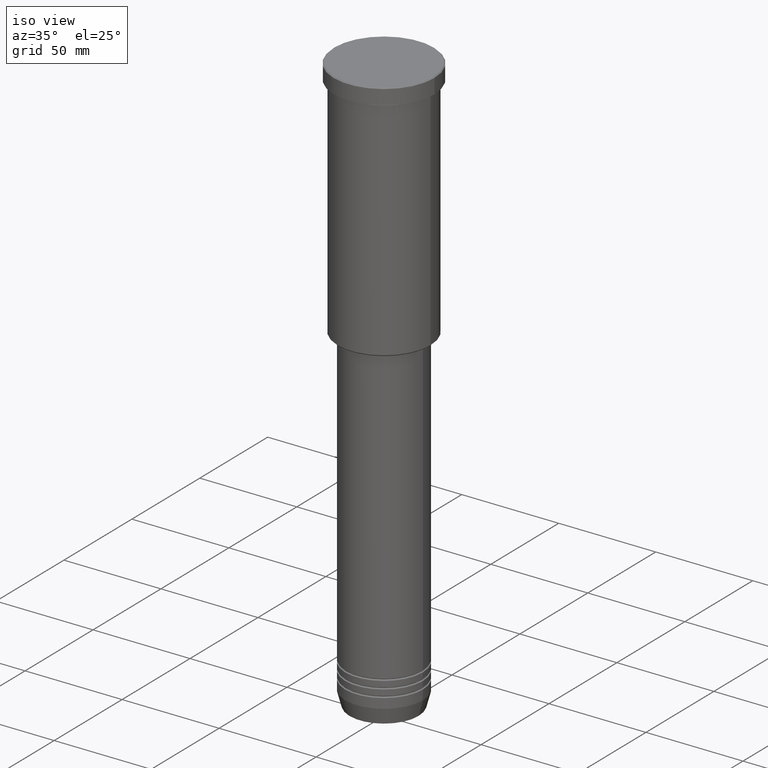
[diagram: clean part render]
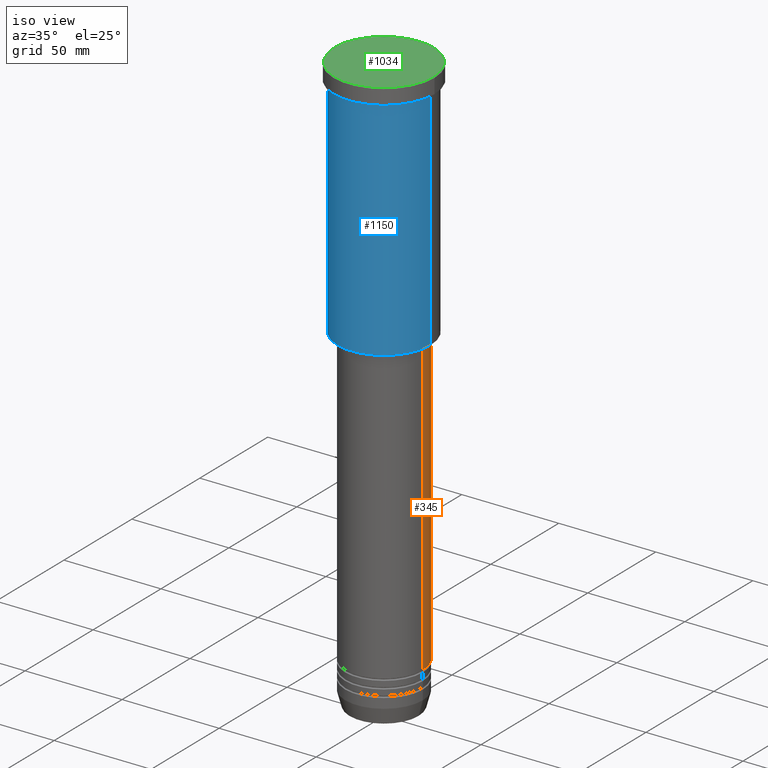
[diagram: same view with three faces highlighted in distinct colors, each labeled with its STEP entity id]
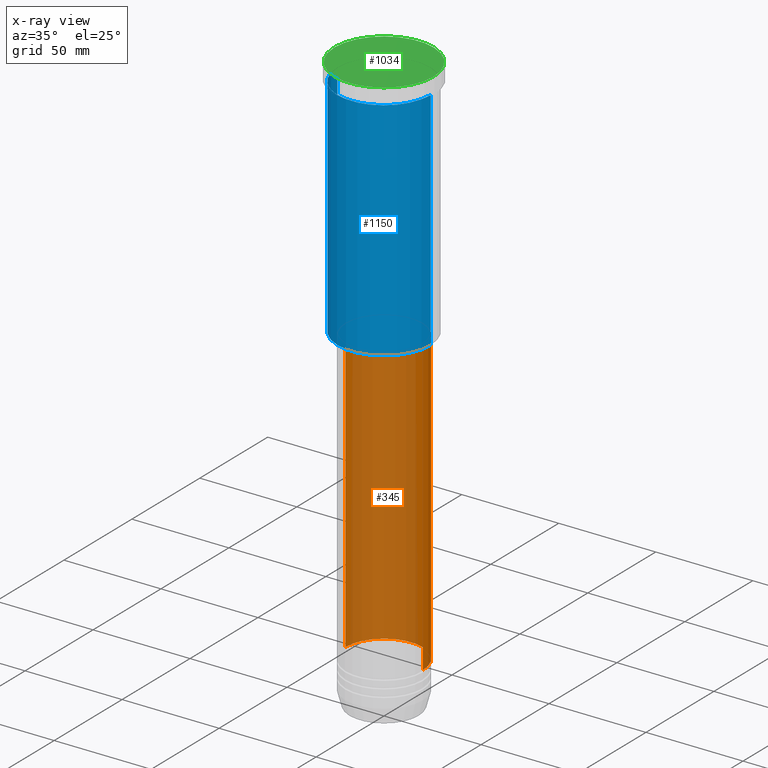
[diagram: x-ray of the same camera — body ghosted, the three highlighted faces saturated]
A machine part, iso view with three faces highlighted in distinct colors.
The next image is the same camera in x-ray (body ghosted, the three faces saturated) — at least one of them is partly hidden behind the body in this view.
Their STEP definitions:

[orange] entity #345 — the highlighted cylindrical surface (partial cylindrical patch) has radius 20 mm, axis along (-0, -0, 1).
#22 = CIRCLE ( 'NONE', #697, 20.00000000000000355 ) ;
#38 = DIRECTION ( 'NONE',  ( -0.000000000000000000, -0.000000000000000000, 1.000000000000000000 ) ) ;
#88 = DIRECTION ( 'NONE',  ( -0.000000000000000000, -0.000000000000000000, 1.000000000000000000 ) ) ;
#111 = EDGE_CURVE ( 'NONE', #239, #167, #267, .T. ) ;
#121 = CARTESIAN_POINT ( 'NONE',  ( 20.00000000000000355, 0.000000000000000000, -277.9999999999999432 ) ) ;
#145 = CARTESIAN_POINT ( 'NONE',  ( -20.00000000000000355, 2.449293598294706907E-15, -277.9999999999999432 ) ) ;
#156 = VECTOR ( 'NONE', #38, 1000.000000000000000 ) ;
#164 = ORIENTED_EDGE ( 'NONE', *, *, #616, .T. ) ;
#167 = VERTEX_POINT ( 'NONE', #751 ) ;
#186 = CARTESIAN_POINT ( 'NONE',  ( -20.00000000000000355, 2.449293598294706907E-15, -127.0000000000000000 ) ) ;
#187 = LINE ( 'NONE', #839, #156 ) ;
#239 = VERTEX_POINT ( 'NONE', #121 ) ;
#267 = LINE ( 'NONE', #1085, #620 ) ;
#327 = CYLINDRICAL_SURFACE ( 'NONE', #925, 20.00000000000000355 ) ;
#345 = ADVANCED_FACE ( 'NONE', ( #967 ), #327, .T. ) ;
#365 = VERTEX_POINT ( 'NONE', #145 ) ;
#374 = AXIS2_PLACEMENT_3D ( 'NONE', #553, #740, #468 ) ;
#417 = EDGE_CURVE ( 'NONE', #167, #783, #22, .T. ) ;
#468 = DIRECTION ( 'NONE',  ( 1.000000000000000000, 0.000000000000000000, 0.000000000000000000 ) ) ;
#553 = CARTESIAN_POINT ( 'NONE',  ( 0.000000000000000000, 0.000000000000000000, -277.9999999999999432 ) ) ;
#616 = EDGE_CURVE ( 'NONE', #239, #365, #885, .T. ) ;
#620 = VECTOR ( 'NONE', #88, 1000.000000000000000 ) ;
#624 = EDGE_CURVE ( 'NONE', #365, #783, #187, .T. ) ;
#651 = ORIENTED_EDGE ( 'NONE', *, *, #624, .T. ) ;
#697 = AXIS2_PLACEMENT_3D ( 'NONE', #704, #708, #1074 ) ;
#704 = CARTESIAN_POINT ( 'NONE',  ( 0.000000000000000000, 0.000000000000000000, -127.0000000000000000 ) ) ;
#708 = DIRECTION ( 'NONE',  ( -0.000000000000000000, -0.000000000000000000, 1.000000000000000000 ) ) ;
#740 = DIRECTION ( 'NONE',  ( -0.000000000000000000, -0.000000000000000000, 1.000000000000000000 ) ) ;
#751 = CARTESIAN_POINT ( 'NONE',  ( 20.00000000000000355, 0.000000000000000000, -127.0000000000000000 ) ) ;
#752 = EDGE_LOOP ( 'NONE', ( #164, #651, #869, #1139 ) ) ;
#775 = CARTESIAN_POINT ( 'NONE',  ( 0.000000000000000000, 0.000000000000000000, 0.000000000000000000 ) ) ;
#783 = VERTEX_POINT ( 'NONE', #186 ) ;
#786 = DIRECTION ( 'NONE',  ( 1.000000000000000000, 0.000000000000000000, 0.000000000000000000 ) ) ;
#839 = CARTESIAN_POINT ( 'NONE',  ( -20.00000000000000355, 2.449293598294706907E-15, 0.000000000000000000 ) ) ;
#869 = ORIENTED_EDGE ( 'NONE', *, *, #417, .F. ) ;
#885 = CIRCLE ( 'NONE', #374, 20.00000000000000355 ) ;
#925 = AXIS2_PLACEMENT_3D ( 'NONE', #775, #1036, #786 ) ;
#967 = FACE_OUTER_BOUND ( 'NONE', #752, .T. ) ;
#1036 = DIRECTION ( 'NONE',  ( -0.000000000000000000, -0.000000000000000000, 1.000000000000000000 ) ) ;
#1074 = DIRECTION ( 'NONE',  ( 1.000000000000000000, 0.000000000000000000, 0.000000000000000000 ) ) ;
#1085 = CARTESIAN_POINT ( 'NONE',  ( 20.00000000000000355, 0.000000000000000000, 0.000000000000000000 ) ) ;
#1139 = ORIENTED_EDGE ( 'NONE', *, *, #111, .F. ) ;

[blue] entity #1150 — the highlighted cylindrical surface (partial cylindrical patch) has radius 24 mm, axis along (-0, -0, 1).
#29 = DIRECTION ( 'NONE',  ( -1.000000000000000000, 0.000000000000000000, 0.000000000000000000 ) ) ;
#41 = VERTEX_POINT ( 'NONE', #336 ) ;
#47 = VERTEX_POINT ( 'NONE', #700 ) ;
#82 = ORIENTED_EDGE ( 'NONE', *, *, #1086, .F. ) ;
#112 = DIRECTION ( 'NONE',  ( -0.000000000000000000, -0.000000000000000000, 1.000000000000000000 ) ) ;
#124 = CIRCLE ( 'NONE', #278, 24.00000000000000000 ) ;
#125 = VECTOR ( 'NONE', #112, 1000.000000000000000 ) ;
#126 = DIRECTION ( 'NONE',  ( -0.000000000000000000, -0.000000000000000000, 1.000000000000000000 ) ) ;
#169 = ORIENTED_EDGE ( 'NONE', *, *, #889, .F. ) ;
#214 = CARTESIAN_POINT ( 'NONE',  ( -24.00000000000000000, 2.939152317953647894E-15, 0.000000000000000000 ) ) ;
#246 = DIRECTION ( 'NONE',  ( -0.000000000000000000, -0.000000000000000000, 1.000000000000000000 ) ) ;
#258 = CIRCLE ( 'NONE', #392, 24.00000000000000000 ) ;
#269 = CARTESIAN_POINT ( 'NONE',  ( 0.000000000000000000, 0.000000000000000000, -8.999999999999994671 ) ) ;
#278 = AXIS2_PLACEMENT_3D ( 'NONE', #269, #353, #631 ) ;
#301 = LINE ( 'NONE', #837, #1168 ) ;
#334 = EDGE_CURVE ( 'NONE', #560, #1020, #258, .T. ) ;
#336 = CARTESIAN_POINT ( 'NONE',  ( 24.00000000000000000, 0.000000000000000000, -8.999999999999994671 ) ) ;
#353 = DIRECTION ( 'NONE',  ( -0.000000000000000000, -0.000000000000000000, 1.000000000000000000 ) ) ;
#383 = LINE ( 'NONE', #214, #125 ) ;
#392 = AXIS2_PLACEMENT_3D ( 'NONE', #586, #246, #29 ) ;
#402 = FACE_OUTER_BOUND ( 'NONE', #437, .T. ) ;
#437 = EDGE_LOOP ( 'NONE', ( #82, #832, #540, #169 ) ) ;
#540 = ORIENTED_EDGE ( 'NONE', *, *, #1067, .T. ) ;
#557 = CARTESIAN_POINT ( 'NONE',  ( 24.00000000000000000, 0.000000000000000000, -125.5000000000000284 ) ) ;
#560 = VERTEX_POINT ( 'NONE', #643 ) ;
#586 = CARTESIAN_POINT ( 'NONE',  ( 0.000000000000000000, 0.000000000000000000, -125.5000000000000284 ) ) ;
#631 = DIRECTION ( 'NONE',  ( 1.000000000000000000, 0.000000000000000000, 0.000000000000000000 ) ) ;
#643 = CARTESIAN_POINT ( 'NONE',  ( -24.00000000000000000, 2.939152317953647894E-15, -125.5000000000000284 ) ) ;
#700 = CARTESIAN_POINT ( 'NONE',  ( -24.00000000000000000, 2.939152317953647894E-15, -8.999999999999994671 ) ) ;
#770 = CYLINDRICAL_SURFACE ( 'NONE', #836, 24.00000000000000000 ) ;
#777 = DIRECTION ( 'NONE',  ( 1.000000000000000000, 0.000000000000000000, 0.000000000000000000 ) ) ;
#832 = ORIENTED_EDGE ( 'NONE', *, *, #334, .T. ) ;
#836 = AXIS2_PLACEMENT_3D ( 'NONE', #1136, #126, #777 ) ;
#837 = CARTESIAN_POINT ( 'NONE',  ( 24.00000000000000000, 0.000000000000000000, 0.000000000000000000 ) ) ;
#889 = EDGE_CURVE ( 'NONE', #47, #41, #124, .T. ) ;
#934 = DIRECTION ( 'NONE',  ( -0.000000000000000000, -0.000000000000000000, 1.000000000000000000 ) ) ;
#1020 = VERTEX_POINT ( 'NONE', #557 ) ;
#1067 = EDGE_CURVE ( 'NONE', #1020, #41, #301, .T. ) ;
#1086 = EDGE_CURVE ( 'NONE', #560, #47, #383, .T. ) ;
#1136 = CARTESIAN_POINT ( 'NONE',  ( 0.000000000000000000, 0.000000000000000000, 0.000000000000000000 ) ) ;
#1150 = ADVANCED_FACE ( 'NONE', ( #402 ), #770, .T. ) ;
#1168 = VECTOR ( 'NONE', #934, 1000.000000000000000 ) ;

[green] entity #1034 — the highlighted planar face has unit normal (0, -0, 1).
#55 = CARTESIAN_POINT ( 'NONE',  ( 0.000000000000000000, 0.000000000000000000, 0.000000000000000000 ) ) ;
#67 = EDGE_CURVE ( 'NONE', #734, #210, #818, .T. ) ;
#196 = PLANE ( 'NONE',  #397 ) ;
#199 = CARTESIAN_POINT ( 'NONE',  ( -25.50000000000005329, 0.000000000000000000, 0.000000000000000000 ) ) ;
#210 = VERTEX_POINT ( 'NONE', #199 ) ;
#217 = ORIENTED_EDGE ( 'NONE', *, *, #722, .T. ) ;
#303 = AXIS2_PLACEMENT_3D ( 'NONE', #1001, #721, #817 ) ;
#342 = DIRECTION ( 'NONE',  ( -0.000000000000000000, -0.000000000000000000, 1.000000000000000000 ) ) ;
#386 = FACE_OUTER_BOUND ( 'NONE', #444, .T. ) ;
#397 = AXIS2_PLACEMENT_3D ( 'NONE', #1110, #1025, #1106 ) ;
#444 = EDGE_LOOP ( 'NONE', ( #217, #512 ) ) ;
#512 = ORIENTED_EDGE ( 'NONE', *, *, #67, .T. ) ;
#516 = CARTESIAN_POINT ( 'NONE',  ( 25.50000000000005329, 3.153465507804437559E-15, 0.000000000000000000 ) ) ;
#528 = CIRCLE ( 'NONE', #680, 25.50000000000005329 ) ;
#680 = AXIS2_PLACEMENT_3D ( 'NONE', #55, #342, #703 ) ;
#703 = DIRECTION ( 'NONE',  ( 1.000000000000000000, 0.000000000000000000, 0.000000000000000000 ) ) ;
#721 = DIRECTION ( 'NONE',  ( -0.000000000000000000, -0.000000000000000000, 1.000000000000000000 ) ) ;
#722 = EDGE_CURVE ( 'NONE', #210, #734, #528, .T. ) ;
#734 = VERTEX_POINT ( 'NONE', #516 ) ;
#817 = DIRECTION ( 'NONE',  ( 1.000000000000000000, 0.000000000000000000, 0.000000000000000000 ) ) ;
#818 = CIRCLE ( 'NONE', #303, 25.50000000000005329 ) ;
#1001 = CARTESIAN_POINT ( 'NONE',  ( 0.000000000000000000, 0.000000000000000000, 0.000000000000000000 ) ) ;
#1025 = DIRECTION ( 'NONE',  ( 0.000000000000000000, -0.000000000000000000, 1.000000000000000000 ) ) ;
#1034 = ADVANCED_FACE ( 'NONE', ( #386 ), #196, .T. ) ;
#1106 = DIRECTION ( 'NONE',  ( 1.000000000000000000, 0.000000000000000000, 0.000000000000000000 ) ) ;
#1110 = CARTESIAN_POINT ( 'NONE',  ( 0.000000000000000000, 0.000000000000000000, 0.000000000000000000 ) ) ;